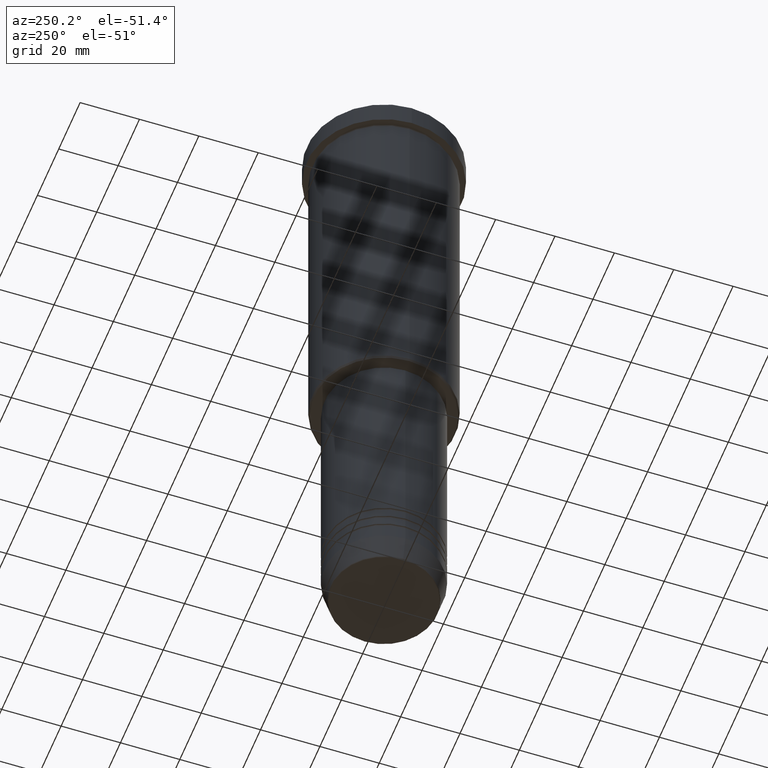
[diagram: clean part render]
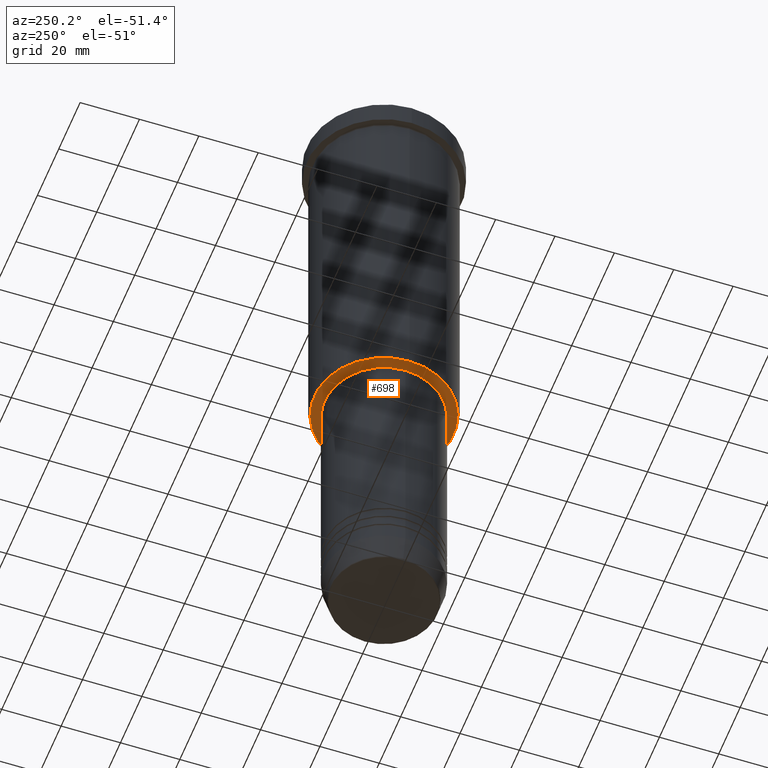
[diagram: same view with one face highlighted and labeled with its STEP entity id]
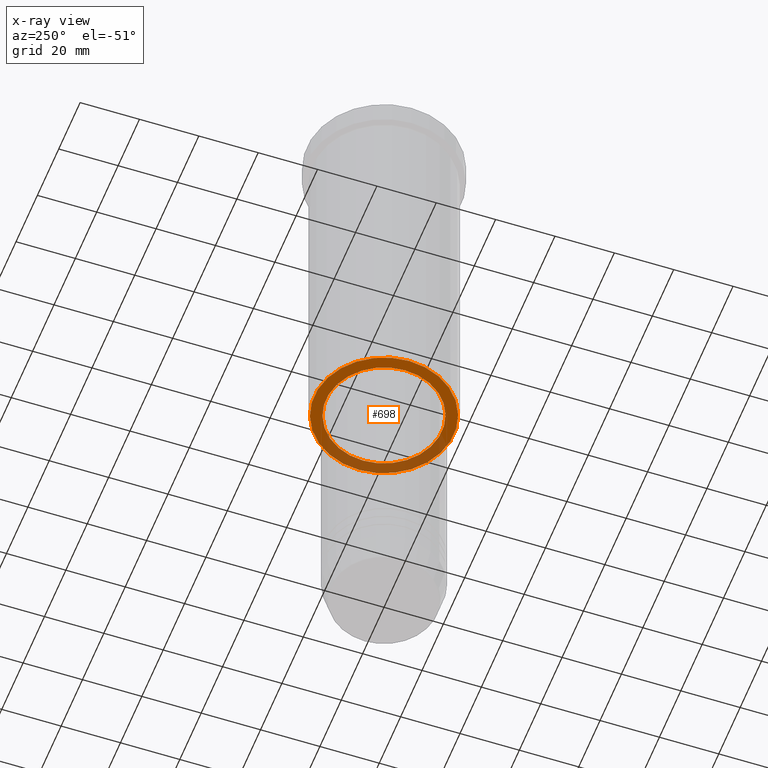
[diagram: x-ray of the same camera — body ghosted, the highlighted face saturated]
A machine part, auxiliary view. The second image highlights one B-rep face of the part: STEP entity #698.
The next image is the same camera in x-ray: the body ghosted, the highlighted face saturated — about 35% of this face is hidden behind the body in this view.
In plain terms, the highlighted planar face has unit normal (0, 0, -1).
Its self-contained STEP definition (entity closure, byte-faithful):
#23 = EDGE_CURVE ( 'NONE', #578, #152, #86, .T. ) ;
#25 = CARTESIAN_POINT ( 'NONE',  ( 0.000000000000000000, 24.00000000000000000, -126.0000000000000000 ) ) ;
#31 = DIRECTION ( 'NONE',  ( 0.000000000000000000, 0.000000000000000000, -1.000000000000000000 ) ) ;
#39 = PLANE ( 'NONE',  #889 ) ;
#72 = DIRECTION ( 'NONE',  ( 1.000000000000000000, 0.000000000000000000, 0.000000000000000000 ) ) ;
#78 = EDGE_CURVE ( 'NONE', #600, #196, #257, .T. ) ;
#86 = CIRCLE ( 'NONE', #827, 19.50000000000000355 ) ;
#110 = DIRECTION ( 'NONE',  ( -1.000000000000000000, 0.000000000000000000, 0.000000000000000000 ) ) ;
#152 = VERTEX_POINT ( 'NONE', #1082 ) ;
#172 = CARTESIAN_POINT ( 'NONE',  ( 19.50000000000000355, 0.000000000000000000, -126.0000000000000000 ) ) ;
#196 = VERTEX_POINT ( 'NONE', #1109 ) ;
#224 = EDGE_LOOP ( 'NONE', ( #445, #779 ) ) ;
#235 = DIRECTION ( 'NONE',  ( -0.000000000000000000, -0.000000000000000000, 1.000000000000000000 ) ) ;
#257 = CIRCLE ( 'NONE', #755, 23.49999999999998934 ) ;
#327 = CARTESIAN_POINT ( 'NONE',  ( 0.000000000000000000, 0.000000000000000000, -126.0000000000000000 ) ) ;
#375 = DIRECTION ( 'NONE',  ( 0.000000000000000000, 0.000000000000000000, -1.000000000000000000 ) ) ;
#378 = EDGE_CURVE ( 'NONE', #152, #578, #658, .T. ) ;
#445 = ORIENTED_EDGE ( 'NONE', *, *, #78, .T. ) ;
#531 = ORIENTED_EDGE ( 'NONE', *, *, #378, .T. ) ;
#544 = CARTESIAN_POINT ( 'NONE',  ( 0.000000000000000000, 0.000000000000000000, -126.0000000000000000 ) ) ;
#545 = AXIS2_PLACEMENT_3D ( 'NONE', #691, #1056, #72 ) ;
#553 = DIRECTION ( 'NONE',  ( -1.000000000000000000, 0.000000000000000000, 0.000000000000000000 ) ) ;
#569 = FACE_OUTER_BOUND ( 'NONE', #224, .T. ) ;
#578 = VERTEX_POINT ( 'NONE', #172 ) ;
#600 = VERTEX_POINT ( 'NONE', #824 ) ;
#644 = CARTESIAN_POINT ( 'NONE',  ( 0.000000000000000000, 0.000000000000000000, -126.0000000000000000 ) ) ;
#645 = ORIENTED_EDGE ( 'NONE', *, *, #23, .T. ) ;
#658 = CIRCLE ( 'NONE', #545, 19.50000000000000355 ) ;
#691 = CARTESIAN_POINT ( 'NONE',  ( 0.000000000000000000, 0.000000000000000000, -126.0000000000000000 ) ) ;
#698 = ADVANCED_FACE ( 'NONE', ( #569, #838 ), #39, .T. ) ;
#711 = EDGE_LOOP ( 'NONE', ( #645, #531 ) ) ;
#724 = DIRECTION ( 'NONE',  ( 1.000000000000000000, 0.000000000000000000, 0.000000000000000000 ) ) ;
#755 = AXIS2_PLACEMENT_3D ( 'NONE', #644, #375, #553 ) ;
#779 = ORIENTED_EDGE ( 'NONE', *, *, #1023, .T. ) ;
#824 = CARTESIAN_POINT ( 'NONE',  ( 23.49999999999998934, 0.000000000000000000, -126.0000000000000000 ) ) ;
#827 = AXIS2_PLACEMENT_3D ( 'NONE', #327, #235, #724 ) ;
#838 = FACE_BOUND ( 'NONE', #711, .T. ) ;
#889 = AXIS2_PLACEMENT_3D ( 'NONE', #25, #31, #1017 ) ;
#907 = DIRECTION ( 'NONE',  ( 0.000000000000000000, 0.000000000000000000, -1.000000000000000000 ) ) ;
#986 = AXIS2_PLACEMENT_3D ( 'NONE', #544, #907, #110 ) ;
#1017 = DIRECTION ( 'NONE',  ( -1.000000000000000000, 0.000000000000000000, -0.000000000000000000 ) ) ;
#1023 = EDGE_CURVE ( 'NONE', #196, #600, #1048, .T. ) ;
#1048 = CIRCLE ( 'NONE', #986, 23.49999999999998934 ) ;
#1056 = DIRECTION ( 'NONE',  ( -0.000000000000000000, -0.000000000000000000, 1.000000000000000000 ) ) ;
#1082 = CARTESIAN_POINT ( 'NONE',  ( -19.50000000000000355, 2.388061258337339333E-15, -126.0000000000000000 ) ) ;
#1109 = CARTESIAN_POINT ( 'NONE',  ( -23.49999999999998934, 2.908536147974963319E-15, -126.0000000000000000 ) ) ;